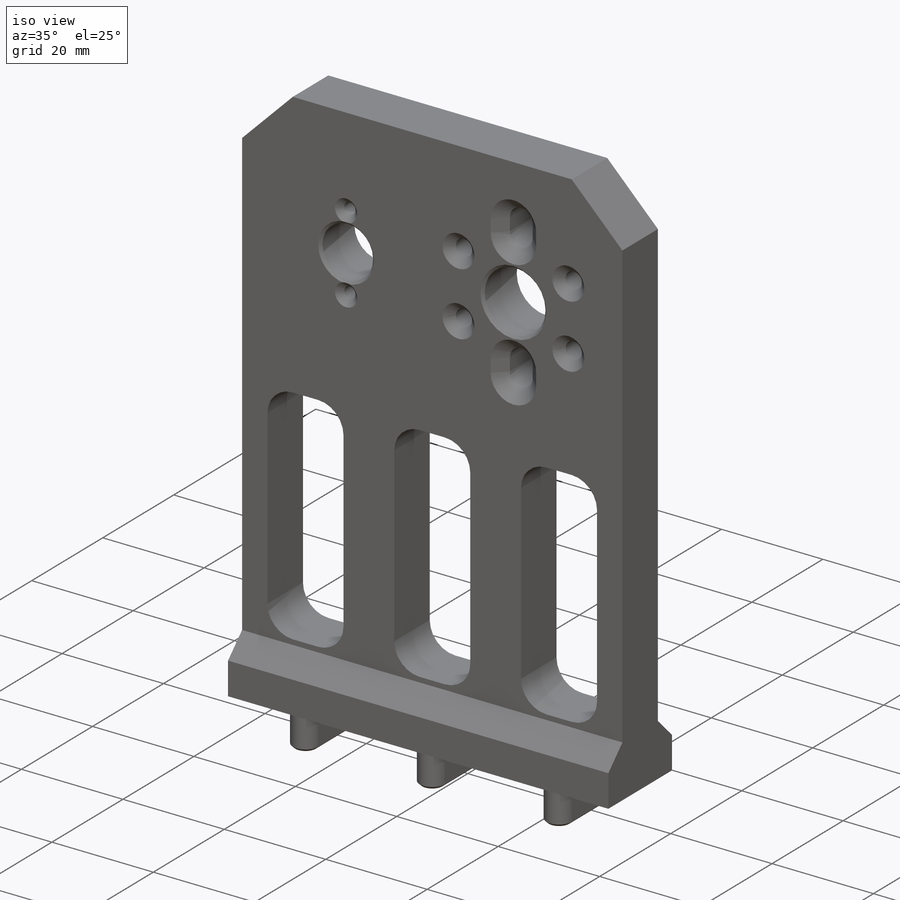
[diagram: iso view]
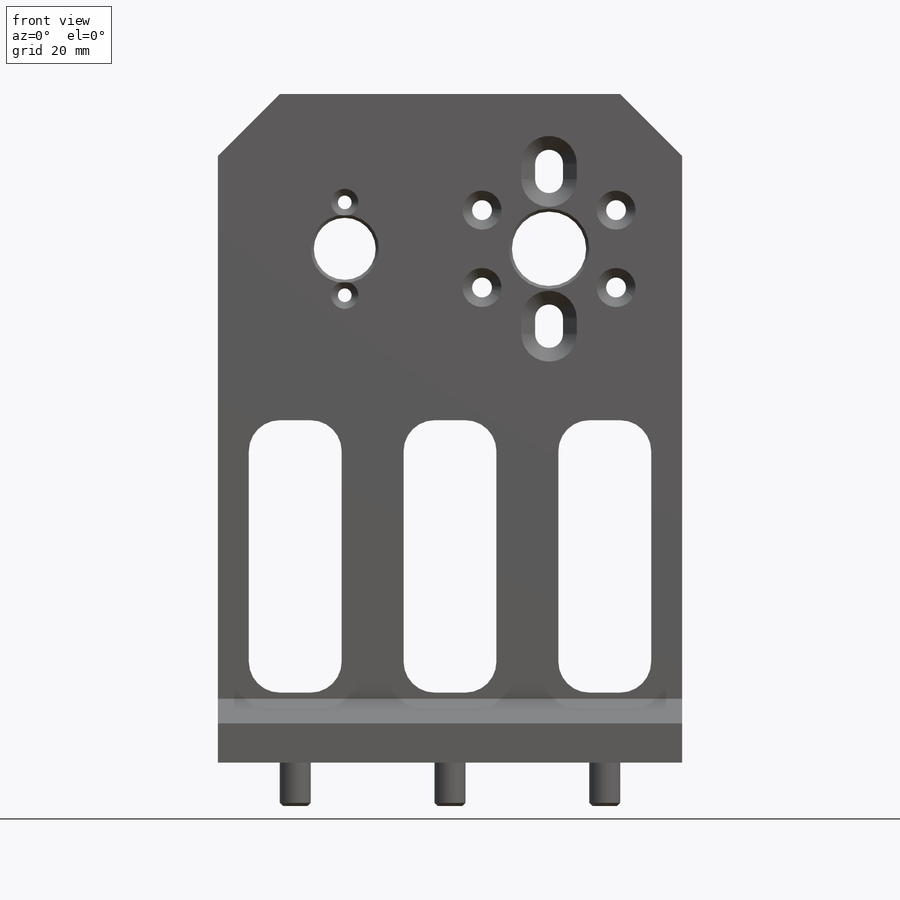
[diagram: front view]
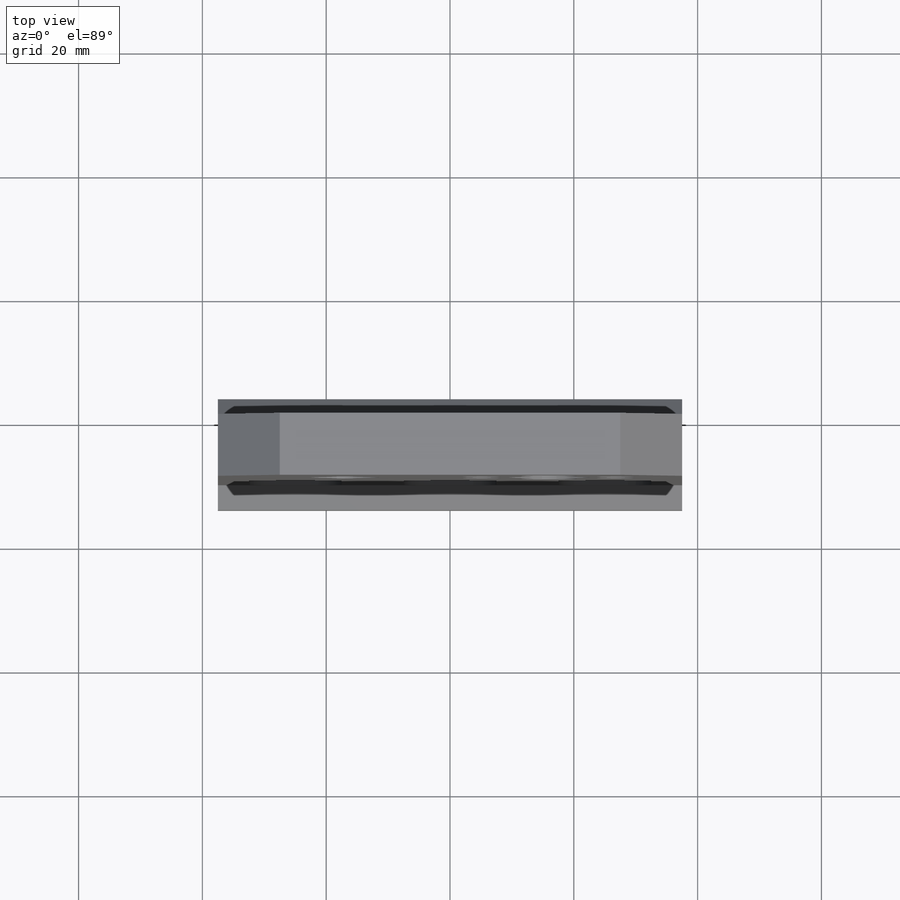
[diagram: top view]
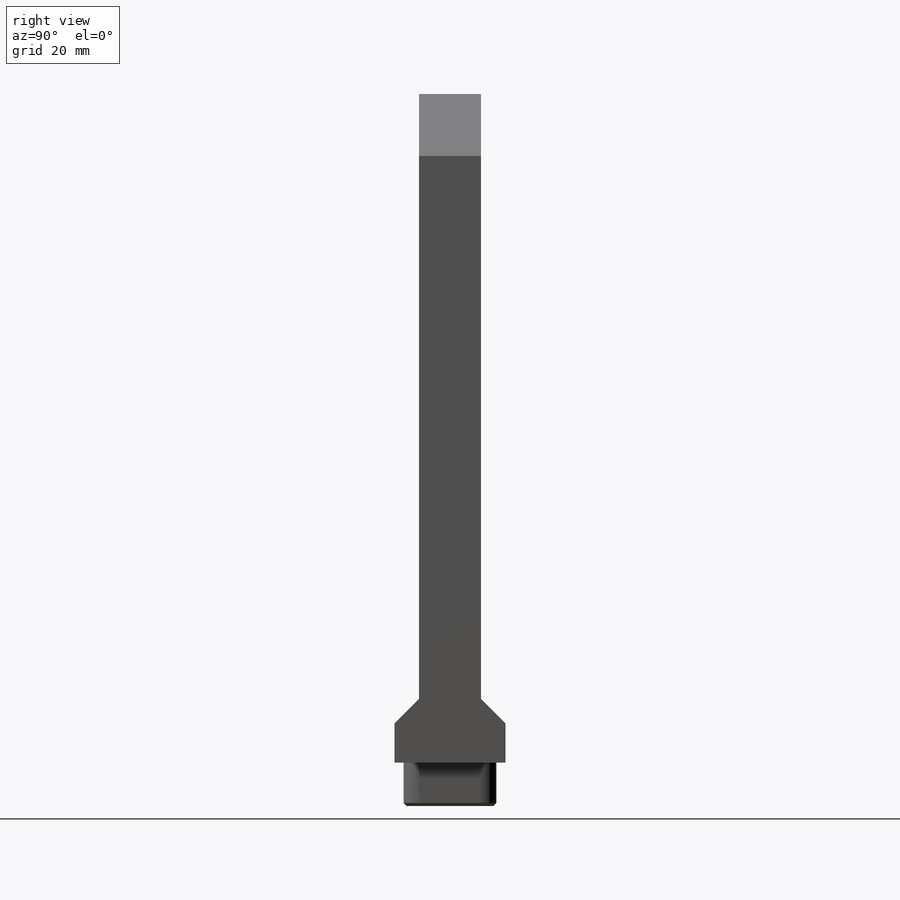
[diagram: right view]
SOLIDWORKS PART (.sldprt)
format: sldprt  version: not decoded by parser v0  size: 711,680 bytes
history: native  units: mm
features: sketch x17, chamfer x4, thread x4, extrude x3, hole x3, cut_extrude x2, material x1 (+13 scaffold rows collapsed)
feature tree (47):
  scaffold x13  (default folders/planes/origin — collapsed)
  material  "6061 Сплав"
  sketch  "Sketch1"  dims[D1=83.0mm D2=75.0mm D3=108.0mm]
  extrude  "Boss-Extrude1"  Depth=10mm
  sketch  "Sketch2"  dims[c1.D1=~14.630267mm c1.D2=5.0mm c1.D4=4.0mm c2.D1=83.0mm c2.D2=16.0mm c2.D3=17.0mm]
  cut_extrude  "Cut-Extrude2"  [1 undecoded]
  sketch  "Sketch9"  dims[c1.D1=25.0mm c2.D1=60.0deg c2.D2=25.0mm]
  hole  "Зенковка для  винта с плоской головкой M31"  Diameter=3.2mm Depth=10mm
  sketch  "Sketch11"
  sketch  "Sketch10"  dims[hole-wizard template sketch: 54 standard entries collapsed; hole parameters kept: c17.Thru Hole Dia.=3.2mm c17.Thru Hole Depth=10.0mm c17.Near C'Sink Dia.=6.3mm c17.D4=~3.666174mm c17.Near C'Sink Angle=90.0deg]
  sketch  "Sketch13"  dims[c1.D1=~20.687932mm c2.D1=45.0deg c2.D2=3.96mm c2.D3=45.0deg c2.D4=10.0mm c3.D3=3.96mm c3.D4=~13.387729mm c4.D4=45.0deg c4.D1=6.35mm c5.D4=~4.918688mm c6.D4=45.0deg]
  extrude  "Boss-Extrude2"  [1 undecoded]
  sketch  "Sketch14"  dims[c1.D1=25.0mm c1.D2=5.0mm c1.D3=10.0mm c1.D4=25.0mm c2.D1=3.0]
  extrude  "Boss-Extrude3"  Depth=7mm
  chamfer  "Chamfer2"  Distance=0.5mm Angle=45deg
  sketch  "Sketch15"  dims[c1.D1=6.25mm c1.D2=13.75mm c2.D1=12.5mm c2.D2=13.75mm c3.D1=27.5mm]
  sketch  "Sketch19"  dims[D1=25.0mm]
  sketch  "Sketch21"  dims[D1=7.0mm]
  sketch  "Sketch20"  dims[hole-wizard template sketch: 39 standard entries collapsed; hole parameters kept: c13.Hole Dia.=4.5mm c13.Hole Depth=15.0mm c13.Near C'Sink Dia.=8.96mm c13.D4=~33.297463mm c13.Near C'Sink Angle=90.0deg c14.D5=~14.816244mm c14.Drill Angle=118.0deg]
  chamfer  "Chamfer4"  Distance=0.5mm Angle=45deg
  sketch  "Sketch22"  dims[c1.D1=5.0mm c1.D2=5.0mm c1.D5=5.0mm c2.D1=6.875mm c2.D2=6.875mm c2.D3=6.875mm c2.D4=6.875mm c2.D5=6.875mm c2.D6=6.875mm c2.D7=6.875mm c2.D8=6.875mm c3.D1=13.75mm c3.D2=13.75mm c3.D3=13.75mm c3.D4=~88.631338mm c4.D1=12.0mm c4.D2=~9.458306mm c4.D3=12.5mm c5.D2=25.0mm c5.D4=2.5mm c5.D3=5.0mm c6.D4=34.0mm c6.D6=1.0mm c6.D1=3.0]
  cut_extrude  "Cut-Extrude3"  [1 undecoded]
  chamfer  "Chamfer5"  Distance=0.5mm Angle=45deg
  sketch  "Sketch24"  dims[D1=15.0mm]
  hole  "CSK for M2 Flat Head Machine Screw1"  Diameter=2.2mm Depth=13.96mm
  sketch  "Sketch26"
  sketch  "Sketch27"  dims[hole-wizard template sketch: 55 standard entries collapsed; hole parameters kept: c17.Thru Hole Depth=13.96mm c17.Near C'Sink Dia.=4.4mm c17.D4=~3.666174mm c17.Near C'Sink Angle=90.0deg]
  hole  "M5x0.8 Tapped Hole1"  Diameter=4.2mm Depth=10.4mm
  sketch  "Sketch29"
  sketch  "Sketch30"  dims[hole-wizard template sketch: 47 standard entries collapsed; hole parameters kept: c15.Tap Drill Depth=10.4mm c15.D3=~14.816244mm c15.Drill Angle=118.0deg]
  thread  "Hole Thread1"  Diameter=8mm  [1 undecoded]
  thread  "Hole Thread2"  Diameter=8mm  [1 undecoded]
  thread  "Hole Thread3"  Diameter=8mm  [1 undecoded]
  thread  "Отверстие резьбы2"  Diameter=8mm  [1 undecoded]
  chamfer  "Chamfer6"  Distance=10mm Angle=45deg
decode coverage: 27 of 33 modeling features carry decoded parameters
note: ~ marks probable driven/reference dimensions
note: 7 parameter values undecoded
summary: no parameter record found for 3 features
note: suppression state not decoded; provenance and decode notes live in map.json
